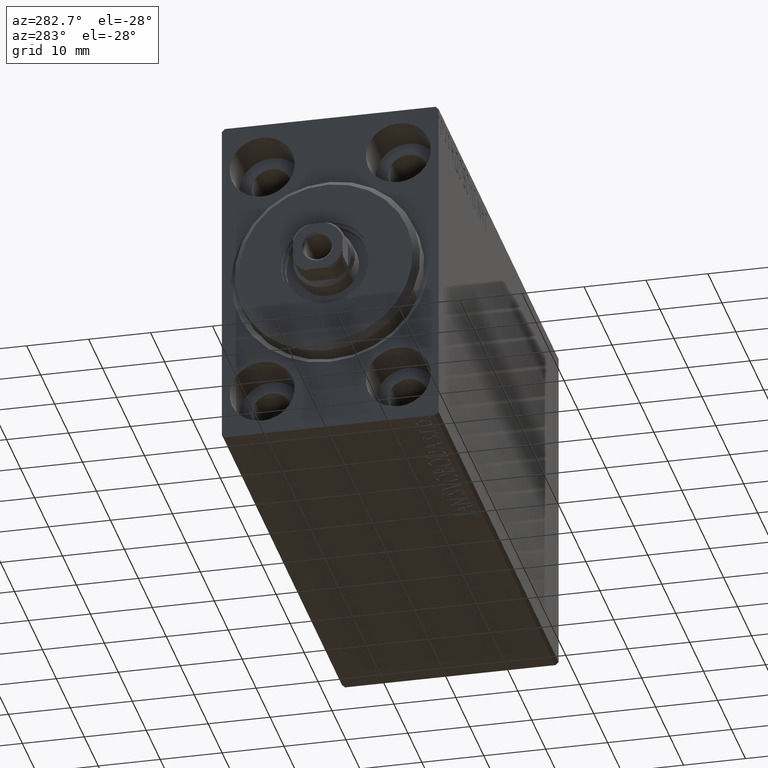
[diagram: clean part render]
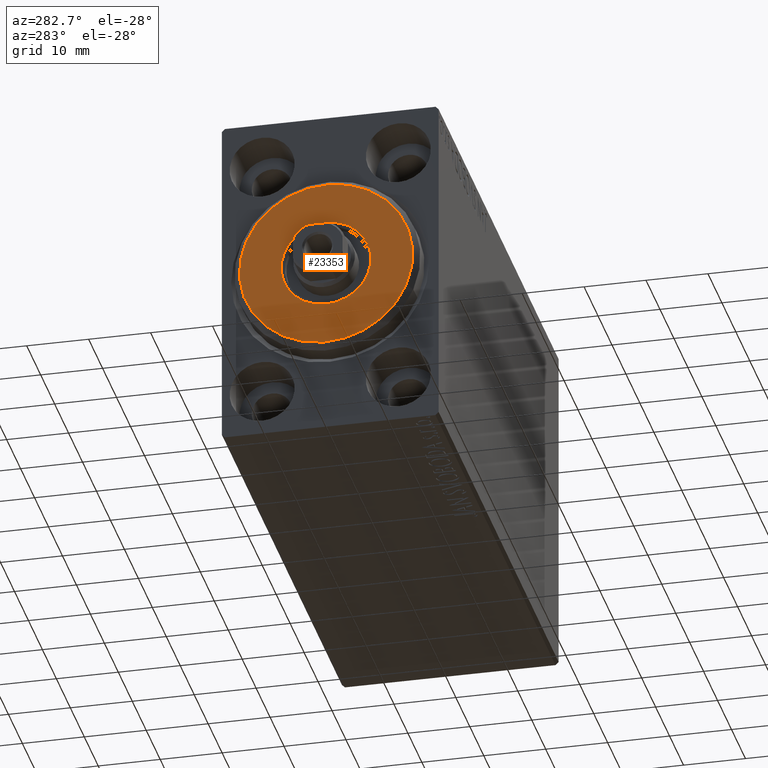
[diagram: same view with one face highlighted and labeled with its STEP entity id]
A machine part, auxiliary view. The second image highlights one B-rep face of the part: STEP entity #23353.
In plain terms, the highlighted planar face has unit normal (-1, 0, 0).
Its self-contained STEP definition (entity closure, byte-faithful):
#2449 = CARTESIAN_POINT ( 'NONE',  ( 3.000000000000000000, 0.000000000000000000, -7.249999999999999112 ) ) ;
#3025 = FACE_BOUND ( 'NONE', #39758, .T. ) ;
#3939 = DIRECTION ( 'NONE',  ( 1.000000000000000000, -0.000000000000000000, 0.000000000000000000 ) ) ;
#4164 = DIRECTION ( 'NONE',  ( 0.000000000000000000, 0.000000000000000000, -1.000000000000000000 ) ) ;
#4355 = EDGE_CURVE ( 'NONE', #19706, #37761, #18562, .T. ) ;
#6586 = EDGE_LOOP ( 'NONE', ( #26470, #41313 ) ) ;
#7334 = AXIS2_PLACEMENT_3D ( 'NONE', #11258, #3939, #4164 ) ;
#7969 = EDGE_CURVE ( 'NONE', #37761, #19706, #20696, .T. ) ;
#9034 = FACE_OUTER_BOUND ( 'NONE', #6586, .T. ) ;
#9694 = CARTESIAN_POINT ( 'NONE',  ( 3.000000000000000000, 0.000000000000000000, 0.000000000000000000 ) ) ;
#10260 = ORIENTED_EDGE ( 'NONE', *, *, #4355, .F. ) ;
#11258 = CARTESIAN_POINT ( 'NONE',  ( 3.000000000000000000, 0.000000000000000000, 0.000000000000000000 ) ) ;
#11567 = CARTESIAN_POINT ( 'NONE',  ( 3.000000000000000000, 1.775737858763662015E-15, -13.99999999999999645 ) ) ;
#12241 = DIRECTION ( 'NONE',  ( 0.000000000000000000, 0.000000000000000000, -1.000000000000000000 ) ) ;
#13797 = DIRECTION ( 'NONE',  ( 1.000000000000000000, 0.000000000000000000, 0.000000000000000000 ) ) ;
#14210 = EDGE_CURVE ( 'NONE', #42923, #21045, #26477, .T. ) ;
#14835 = AXIS2_PLACEMENT_3D ( 'NONE', #25144, #35541, #12241 ) ;
#16570 = DIRECTION ( 'NONE',  ( 0.000000000000000000, 0.000000000000000000, -1.000000000000000000 ) ) ;
#17409 = DIRECTION ( 'NONE',  ( 1.000000000000000000, -0.000000000000000000, 0.000000000000000000 ) ) ;
#18141 = CARTESIAN_POINT ( 'NONE',  ( 3.000000000000000000, 0.000000000000000000, 0.000000000000000000 ) ) ;
#18562 = CIRCLE ( 'NONE', #27045, 7.249999999999999112 ) ;
#19706 = VERTEX_POINT ( 'NONE', #25441 ) ;
#20696 = CIRCLE ( 'NONE', #33434, 7.249999999999999112 ) ;
#21045 = VERTEX_POINT ( 'NONE', #22003 ) ;
#22003 = CARTESIAN_POINT ( 'NONE',  ( 3.000000000000000000, 0.000000000000000000, 13.99999999999999645 ) ) ;
#23353 = ADVANCED_FACE ( 'NONE', ( #9034, #3025 ), #30940, .T. ) ;
#24584 = AXIS2_PLACEMENT_3D ( 'NONE', #9694, #17409, #16570 ) ;
#25144 = CARTESIAN_POINT ( 'NONE',  ( 3.000000000000000000, 0.000000000000000000, 0.000000000000000000 ) ) ;
#25441 = CARTESIAN_POINT ( 'NONE',  ( 3.000000000000000000, 8.878689293818310074E-16, 7.249999999999999112 ) ) ;
#26470 = ORIENTED_EDGE ( 'NONE', *, *, #35186, .T. ) ;
#26477 = CIRCLE ( 'NONE', #7334, 13.99999999999999645 ) ;
#26685 = DIRECTION ( 'NONE',  ( 0.000000000000000000, 0.000000000000000000, -1.000000000000000000 ) ) ;
#27045 = AXIS2_PLACEMENT_3D ( 'NONE', #27347, #13797, #26685 ) ;
#27347 = CARTESIAN_POINT ( 'NONE',  ( 3.000000000000000000, 0.000000000000000000, 0.000000000000000000 ) ) ;
#28788 = DIRECTION ( 'NONE',  ( 1.000000000000000000, 0.000000000000000000, 0.000000000000000000 ) ) ;
#30940 = PLANE ( 'NONE',  #24584 ) ;
#33434 = AXIS2_PLACEMENT_3D ( 'NONE', #18141, #28788, #35426 ) ;
#33964 = CIRCLE ( 'NONE', #14835, 13.99999999999999645 ) ;
#35186 = EDGE_CURVE ( 'NONE', #21045, #42923, #33964, .T. ) ;
#35426 = DIRECTION ( 'NONE',  ( 0.000000000000000000, 0.000000000000000000, -1.000000000000000000 ) ) ;
#35541 = DIRECTION ( 'NONE',  ( 1.000000000000000000, -0.000000000000000000, 0.000000000000000000 ) ) ;
#37761 = VERTEX_POINT ( 'NONE', #2449 ) ;
#38619 = ORIENTED_EDGE ( 'NONE', *, *, #7969, .F. ) ;
#39758 = EDGE_LOOP ( 'NONE', ( #38619, #10260 ) ) ;
#41313 = ORIENTED_EDGE ( 'NONE', *, *, #14210, .T. ) ;
#42923 = VERTEX_POINT ( 'NONE', #11567 ) ;